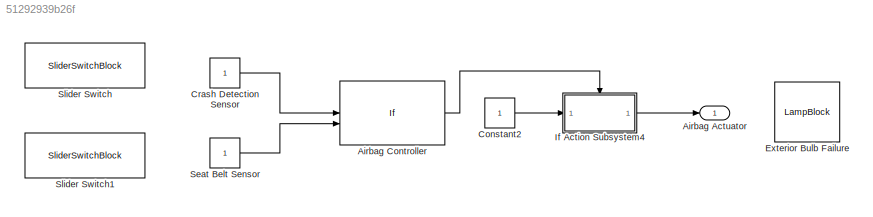
MODEL slx_51292939b26f
KIND model
CONFIG AbsTol = auto
CONFIG EnableMultiTasking = off
CONFIG FixedStep = auto
CONFIG MaxStep = auto
CONFIG MinStep = auto
CONFIG RelTol = 1e-3
CONFIG SampleTimeConstraint = Unconstrained
CONFIG SolverName = ode4
CONFIG StartTime = 0.0
CONFIG StopTime = 10.0
BLOCK [Outport] Airbag Actuator
BLOCK [If] Airbag Controller
  IfExpression = u1==1&u2==1
  NumInputs = 2
  ShowElse = off
BLOCK [Constant] Constant2
BLOCK [Constant] Crash Detection Sensor
BLOCK [LampBlock] Exterior Bulb Failure
  Icon = ExteriorBulbFailure
  LabelPosition = Hide
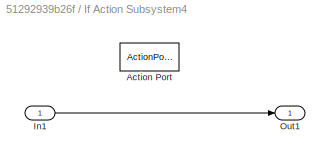
BLOCK [SubSystem] If Action Subsystem4
  TreatAsAtomicUnit = on
BLOCK [ActionPort] If Action Subsystem4/Action Port
  ActionPortLabel = if(u1==1&u2==1)
BLOCK [Inport] If Action Subsystem4/In1
BLOCK [Outport] If Action Subsystem4/Out1
BLOCK [Constant] Seat Belt Sensor
BLOCK [SliderSwitchBlock] Slider Switch
BLOCK [SliderSwitchBlock] Slider Switch1
LINE Airbag Controller:1 -> If Action Subsystem4:ifaction
LINE Constant2:1 -> If Action Subsystem4:1
LINE Crash Detection Sensor:1 -> Airbag Controller:1
LINE If Action Subsystem4/In1:1 -> If Action Subsystem4/Out1:1
LINE If Action Subsystem4:1 -> Airbag Actuator:1
LINE Seat Belt Sensor:1 -> Airbag Controller:2
